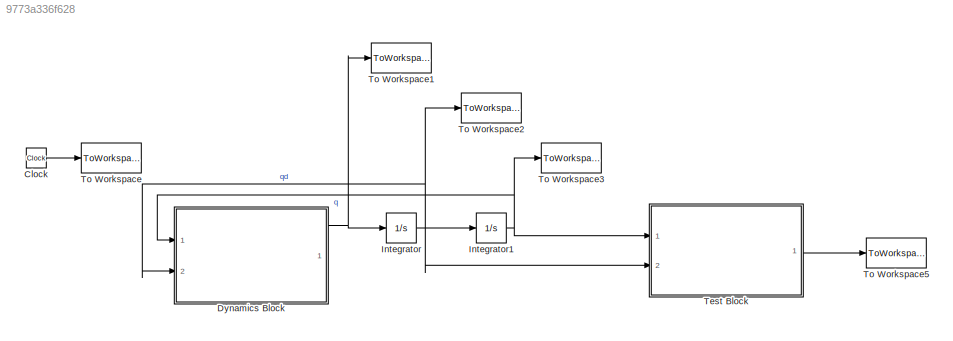
MODEL slx_9773a336f628
KIND model
CONFIG AbsTol = auto
CONFIG EnableMultiTasking = off
CONFIG FixedStep = auto
CONFIG MaxStep = auto
CONFIG MinStep = 10e-13
CONFIG RelTol = auto
CONFIG SampleTimeConstraint = Unconstrained
CONFIG Solver = VariableStepAuto
CONFIG SolverName = VariableStepAuto
CONFIG StartTime = 0.0
CONFIG StopTime = 10
BLOCK [Clock] Clock
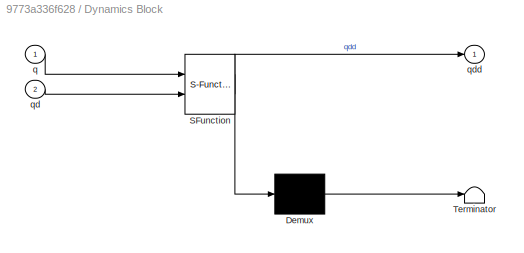
BLOCK [SubSystem] Dynamics Block
  ErrorFcn = Stateflow.Translate.translate
  PermitHierarchicalResolution = ExplicitOnly
  Ports = [2, 1]
  RequestExecContextInheritance = off
  SFBlockType = MATLAB Function
  TreatAsAtomicUnit = on
BLOCK [Demux] Dynamics Block/ Demux 
  Outputs = 1
  Ports = [1, 1]
BLOCK [S-Function] Dynamics Block/ SFunction 
  EnableBusSupport = on
  FunctionName = sf_sfun
  Parameters = J
  PortCounts = [2 2]
  Ports = [2, 2]
  SFcnIsStateOwnerBlock = off
  SFunctionDeploymentMode = off
  Tag = Stateflow S-Function tumbling_sim 2
BLOCK [Terminator] Dynamics Block/ Terminator 
BLOCK [Inport] Dynamics Block/q
  IconDisplay = Port number
BLOCK [Inport] Dynamics Block/qd
  IconDisplay = Port number
  Port = 2
BLOCK [Outport] Dynamics Block/qdd
  IconDisplay = Port number
BLOCK [Integrator] Integrator
  InitialCondition = qd0
  Ports = [1, 1]
BLOCK [Integrator] Integrator1
  InitialCondition = q0
  Ports = [1, 1]
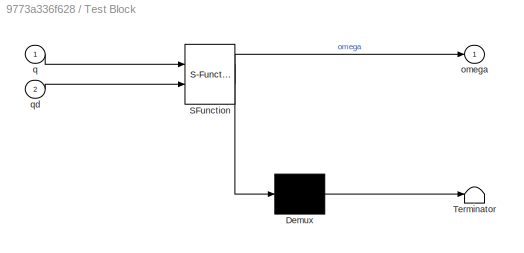
BLOCK [SubSystem] Test Block
  ErrorFcn = Stateflow.Translate.translate
  PermitHierarchicalResolution = ExplicitOnly
  Ports = [2, 1]
  RequestExecContextInheritance = off
  SFBlockType = MATLAB Function
  TreatAsAtomicUnit = on
BLOCK [Demux] Test Block/ Demux 
  Outputs = 1
  Ports = [1, 1]
BLOCK [S-Function] Test Block/ SFunction 
  EnableBusSupport = on
  FunctionName = sf_sfun
  PortCounts = [2 2]
  Ports = [2, 2]
  SFcnIsStateOwnerBlock = off
  SFunctionDeploymentMode = off
  Tag = Stateflow S-Function tumbling_sim 1
BLOCK [Terminator] Test Block/ Terminator 
BLOCK [Outport] Test Block/omega
  IconDisplay = Port number
BLOCK [Inport] Test Block/q
  IconDisplay = Port number
BLOCK [Inport] Test Block/qd
  IconDisplay = Port number
  Port = 2
BLOCK [ToWorkspace] To Workspace
  MaxDataPoints = inf
  Ports = [1]
  SampleTime = -1
  VariableName = t_test
BLOCK [ToWorkspace] To Workspace1
  MaxDataPoints = inf
  Ports = [1]
  SampleTime = -1
  VariableName = qdd_test
BLOCK [ToWorkspace] To Workspace2
  MaxDataPoints = inf
  Ports = [1]
  SampleTime = -1
  VariableName = qd_test
BLOCK [ToWorkspace] To Workspace3
  MaxDataPoints = inf
  Ports = [1]
  SampleTime = -1
  VariableName = q_test
BLOCK [ToWorkspace] To Workspace5
  MaxDataPoints = inf
  Ports = [1]
  SampleTime = -1
  VariableName = omega_test
LINE Clock:1 -> To Workspace:1
NET Dynamics Block:1 -> Integrator:1, To Workspace1:1
NET Integrator1:1 -> Dynamics Block:1, Test Block:1, To Workspace3:1
NET Integrator:1 -> Dynamics Block:2, Integrator1:1, Test Block:2, To Workspace2:1
LINE Test Block:1 -> To Workspace5:1
note: NET lines group one-source signal fan-out (src -> all destinations, sorted); 1:1 wires keep LINE
CHART Test Block states=1 transitions=1
  STATE_LABEL 'eML_blk_kernel()'
  STATE_LABEL 'SCRIPT:\nfunction omega = testfun(q,qd)\n\nH = 2*[-q(2) q(1) q(4) -q(3);\n       -q(3) -q(4) q(1) q(2);\n       -q(4) q(3) -q(2) q(1)];\n\nomega = H*qd;'
CHART Dynamics Block states=1 transitions=1
  STATE_LABEL 'eML_blk_kernel()'
  STATE_LABEL "SCRIPT:\nfunction qdd  = tumbling_dynamics(q,qd,J)\n\nE1 = [-q(2) q(1) q(4) -q(3);\n       -q(3) -q(4) q(1) q(2);\n       -q(4) q(3) -q(2) q(1)];\n   \nomega = 2*E1*qd;\n\nqdd = -0.5*E1'/J*cross(omega,J*omega)-qd'*qd*q;"
